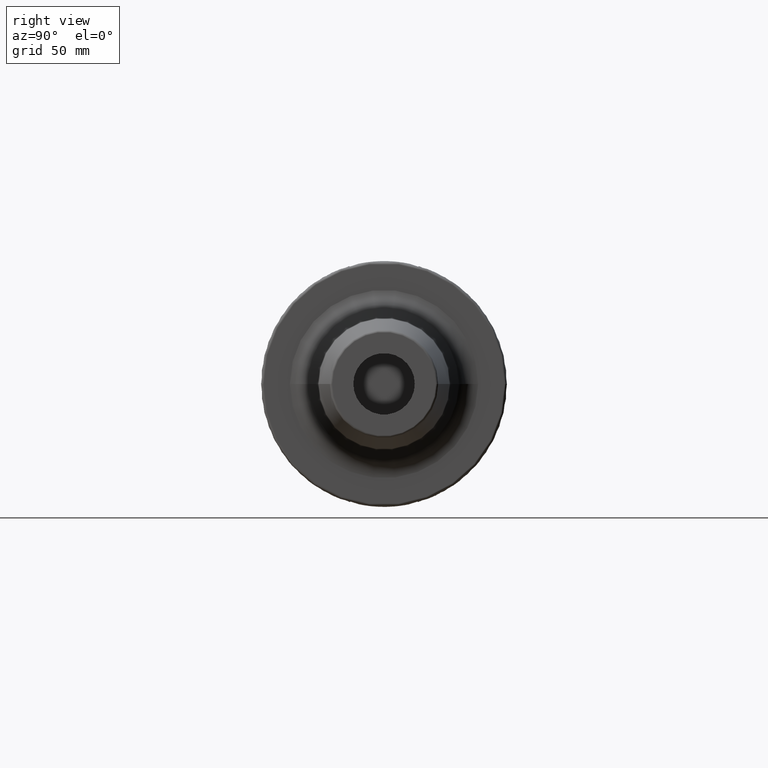
[diagram: clean part render]
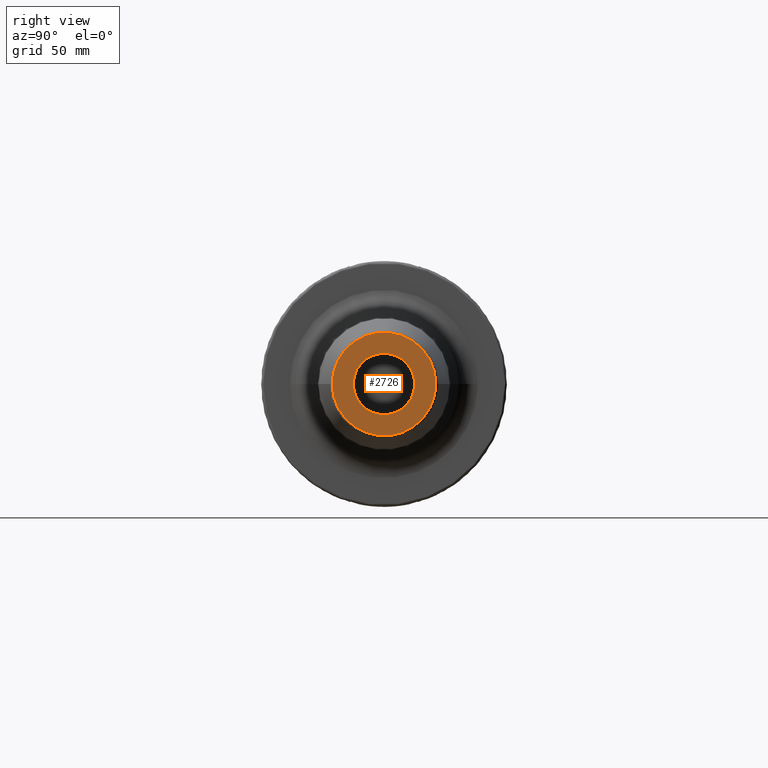
[diagram: same view with one face highlighted and labeled with its STEP entity id]
A machine part, right view. The second image highlights one B-rep face of the part: STEP entity #2726.
In plain terms, the highlighted planar face has unit normal (1, 0, 0).
Its self-contained STEP definition (entity closure, byte-faithful):
#930=CARTESIAN_POINT('',(1.6E2,0.E0,0.E0));
#931=DIRECTION('',(1.E0,0.E0,0.E0));
#932=DIRECTION('',(0.E0,1.E0,0.E0));
#933=AXIS2_PLACEMENT_3D('',#930,#931,#932);
#935=CARTESIAN_POINT('',(1.6E2,0.E0,0.E0));
#936=DIRECTION('',(1.E0,0.E0,0.E0));
#937=DIRECTION('',(0.E0,-1.E0,0.E0));
#938=AXIS2_PLACEMENT_3D('',#935,#936,#937);
#940=CARTESIAN_POINT('',(1.6E2,0.E0,0.E0));
#941=DIRECTION('',(-1.E0,0.E0,0.E0));
#942=DIRECTION('',(0.E0,1.E0,0.E0));
#943=AXIS2_PLACEMENT_3D('',#940,#941,#942);
#945=CARTESIAN_POINT('',(1.6E2,0.E0,0.E0));
#946=DIRECTION('',(-1.E0,0.E0,0.E0));
#947=DIRECTION('',(0.E0,-1.E0,0.E0));
#948=AXIS2_PLACEMENT_3D('',#945,#946,#947);
#1419=CARTESIAN_POINT('',(1.6E2,1.25E1,0.E0));
#1420=CARTESIAN_POINT('',(1.6E2,-1.25E1,0.E0));
#1421=VERTEX_POINT('',#1419);
#1422=VERTEX_POINT('',#1420);
#1427=CARTESIAN_POINT('',(1.6E2,2.107560950834E1,-2.799345601883E-14));
#1428=CARTESIAN_POINT('',(1.6E2,-2.107560950834E1,2.541243824638E-14));
#1429=VERTEX_POINT('',#1427);
#1430=VERTEX_POINT('',#1428);
#2711=CARTESIAN_POINT('',(1.6E2,0.E0,0.E0));
#2712=DIRECTION('',(1.E0,0.E0,0.E0));
#2713=DIRECTION('',(0.E0,-1.E0,0.E0));
#2714=AXIS2_PLACEMENT_3D('',#2711,#2712,#2713);
#2715=PLANE('',#2714);
#2716=ORIENTED_EDGE('',*,*,#2693,.T.);
#2717=ORIENTED_EDGE('',*,*,#2678,.T.);
#2718=EDGE_LOOP('',(#2716,#2717));
#2719=FACE_OUTER_BOUND('',#2718,.F.);
#2721=ORIENTED_EDGE('',*,*,#2720,.T.);
#2723=ORIENTED_EDGE('',*,*,#2722,.T.);
#2724=EDGE_LOOP('',(#2721,#2723));
#2725=FACE_BOUND('',#2724,.F.);
#2726=ADVANCED_FACE('',(#2719,#2725),#2715,.T.);
#934=CIRCLE('',#933,1.25E1);
#939=CIRCLE('',#938,1.25E1);
#944=CIRCLE('',#943,2.107560950834E1);
#949=CIRCLE('',#948,2.107560950834E1);
#2678=EDGE_CURVE('',#1430,#1429,#949,.T.);
#2693=EDGE_CURVE('',#1429,#1430,#944,.T.);
#2720=EDGE_CURVE('',#1421,#1422,#934,.T.);
#2722=EDGE_CURVE('',#1422,#1421,#939,.T.);